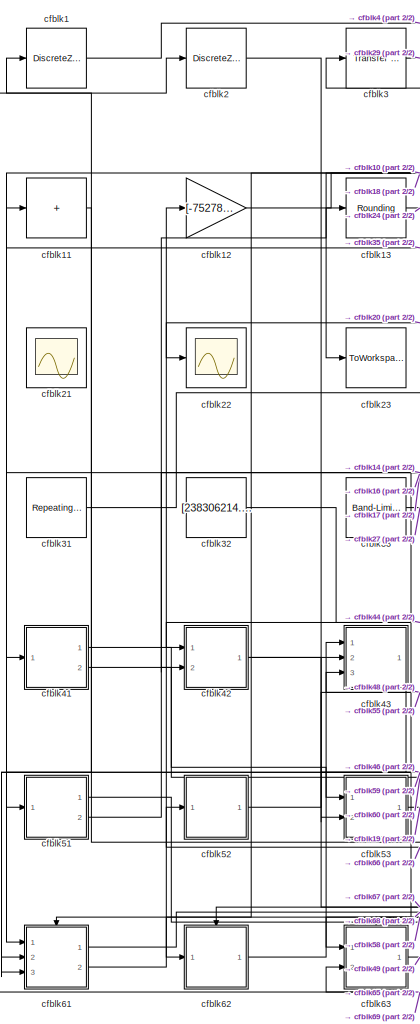
[diagram: root canvas - part 1/2, left side, full height]
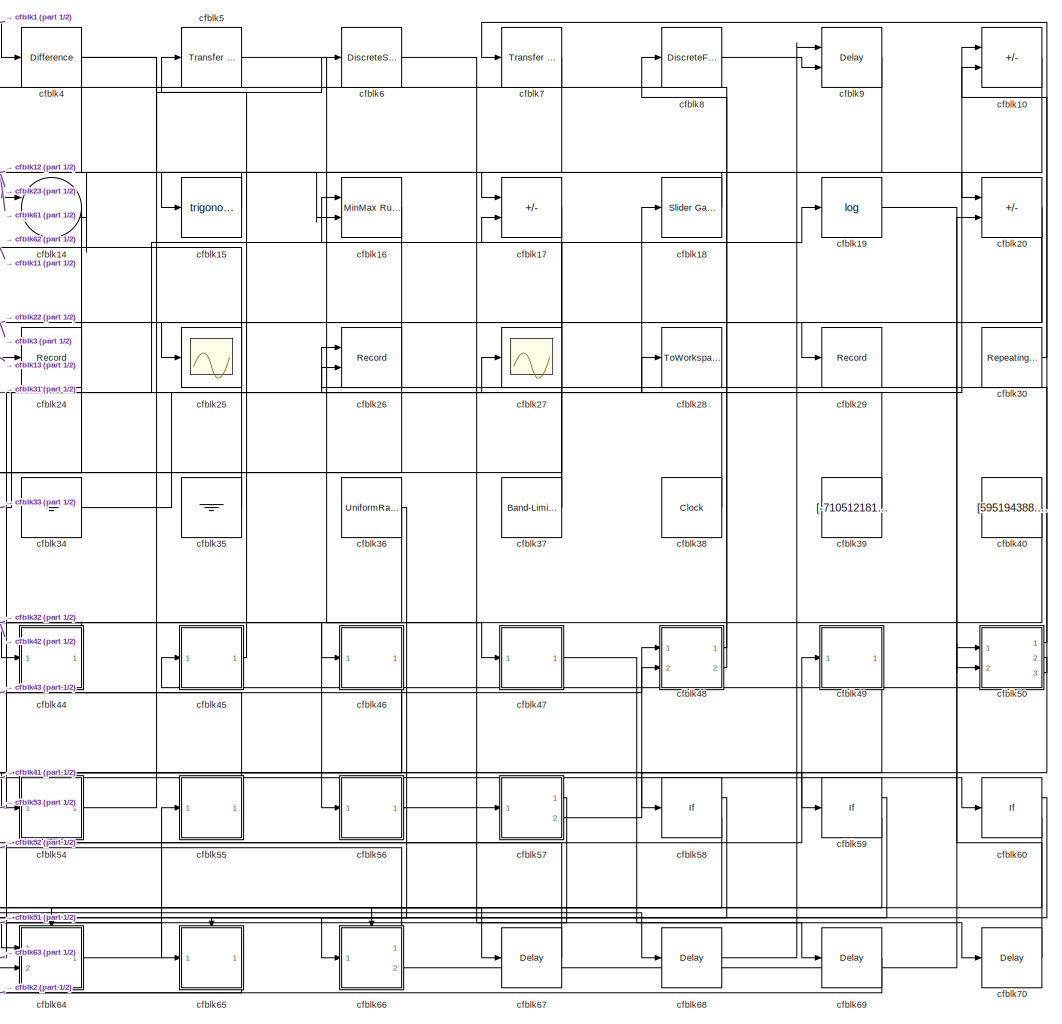
[diagram: root canvas - part 2/2, center side, full height]
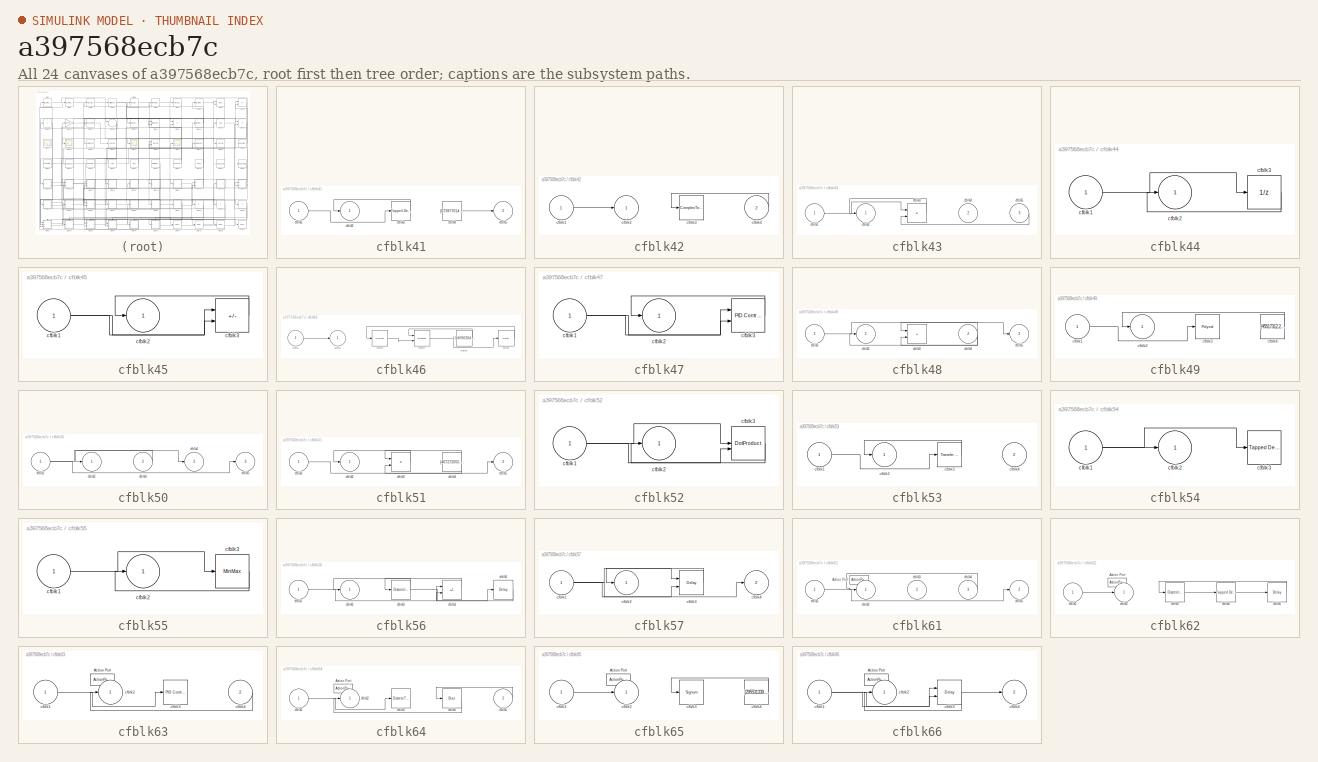
[diagram: thumbnail index - all 24 canvases of the model, root first then tree order]
MODEL slx_a397568ecb7c
KIND model
CONFIG AbsTol = auto
CONFIG EnableMultiTasking = off
CONFIG FixedStep = auto
CONFIG MaxStep = auto
CONFIG MinStep = auto
CONFIG RelTol = 1e-3
CONFIG SampleTimeConstraint = Unconstrained
CONFIG SolverName = VariableStepAuto
CONFIG StartTime = 0.0
CONFIG StopTime = 10.0
BLOCK [DiscreteZeroPole] cfblk1
  Gain = 1
  Poles = [0 0.5]
BLOCK [Sum] cfblk10
  IconShape = rectangular
  Inputs = +-
  Ports = [2, 1]
BLOCK [Sum] cfblk11
  IconShape = rectangular
  Inputs = +
  Ports = [1, 1]
BLOCK [Gain] cfblk12
  Gain = [-752784006.567977]
BLOCK [Rounding] cfblk13
BLOCK [Sum] cfblk14
  Inputs = |++
  Ports = [2, 1]
BLOCK [Trigonometry] cfblk15
  Ports = [1, 1]
BLOCK [Reference] cfblk16  REF=simulink/Math
Operations/MinMax
Running
Resettable
  Ports = [2, 1]
  SourceBlock = simulink/Math\nOperations/MinMax\nRunning\nResettable
  SourceProductBaseCode = SL
  SourceType = MinMax Running Resettable
BLOCK [Sum] cfblk17
  IconShape = rectangular
  Inputs = --
  Ports = [2, 1]
BLOCK [Reference] cfblk18  REF=simulink/Math
Operations/Slider
Gain
  Ports = [1, 1]
  SourceBlock = simulink/Math\nOperations/Slider\nGain
  SourceProductBaseCode = SL
  SourceType = Slider Gain
BLOCK [Math] cfblk19
  Operator = log
  Ports = [1, 1]
BLOCK [DiscreteZeroPole] cfblk2
  Gain = 1
  Poles = [0 0.5]
BLOCK [Sum] cfblk20
  IconShape = rectangular
  Inputs = --
  Ports = [2, 1]
BLOCK [Scope] cfblk21
  Floating = on
  NumInputPorts = 1
  Ports = []
BLOCK [Scope] cfblk22
  Floating = off
  NumInputPorts = 1
  Ports = [1]
BLOCK [ToWorkspace] cfblk23
  FixptAsFi = on
  MaxDataPoints = inf
  Ports = [1]
  SampleTime = -1
  SaveFormat = Timeseries
  VariableName = uregbij
BLOCK [Record] cfblk24
  FileSettingsInternal = {"entries":[{"content":{"excelSettings":{"content":{},"type":"Streamout.ExcelSettings"}},"type":"Streamout.FileSettingStorage","uuid":"02e6ebe4-4f75-4483-8c40-05cdad5e9980"}],"packageUris":["http://schema.mathworks.com/mf0/streamout_blocks/R2020a"],"version":"1.0"}
  Ports = [1]
  SignalsInternal = {"entries":[{"content":{"signals":[{"content":{"blockPath":["sampleModel290/cfblk24"],"channel":[],"dimensions":[1],"domain":"sampleModel290/cfblk24","lineColor":"#b746ff","plots":[1],"port":1,"sid":[""],"signalID":12410,"signalName":"cfblk13"},"type":"RecordBlkView.Signal","uuid":"8fecd66d-b984-43b4-8109-c7cccdd95abe"}]},"type":"RecordBlkView.InputSignals","uuid":"a5a1af20-5ce4-4407-aad3-677f96b5...<+98ch>
  VisualizationBindings = {"sparklinesplugin":{"info":[{"bindingParametersList":[],"subplotID":1}]}}
BLOCK [Scope] cfblk25
  Floating = off
  NumInputPorts = 1
  Ports = [1]
BLOCK [Record] cfblk26
  CompatibilityTag = XY
  FileSettingsInternal = {"entries":[{"content":{"excelSettings":{"content":{},"type":"Streamout.ExcelSettings"}},"type":"Streamout.FileSettingStorage","uuid":"e9eff6ce-7325-488c-8dda-929286e97066"}],"packageUris":["http://schema.mathworks.com/mf0/streamout_blocks/R2020a"],"version":"1.0"}
  Layout = [1 1]
  Ports = [2]
  SignalsInternal = {"entries":[{"content":{"signals":[{"content":{"blockPath":["sampleModel290/cfblk26"],"channel":[],"dimensions":[1],"domain":"sampleModel290/cfblk26","lineColor":"#a2142f","plots":[1],"port":1,"sid":[""],"signalID":12398,"signalName":"cfblk39"},"type":"RecordBlkView.Signal","uuid":"f127209e-a6a9-45f0-a171-9e263d700d63"},{"content":{"blockPath":["sampleModel290/cfblk26"],"channel":[],"dimensions":[...<+387ch>
  VisualizationBindings = {"xyplotplugin":{"info":[{"series":[{"bindingParametersList":[{"parameter":"X-Axis","signalID":12398,"signalName":"cfblk39"},{"parameter":"Y-Axis","signalID":12402,"signalName":"cfblk50:3"}],"seriesID":48777}],"subplotID":1}]}}
BLOCK [Scope] cfblk27
  Floating = off
  NumInputPorts = 1
  Ports = [1]
BLOCK [ToWorkspace] cfblk28
  FixptAsFi = on
  MaxDataPoints = inf
  Ports = [1]
  SampleTime = -1
  SaveFormat = Timeseries
  VariableName = mtbtcrv
BLOCK [Record] cfblk29
  FileSettingsInternal = {"entries":[{"content":{"excelSettings":{"content":{},"type":"Streamout.ExcelSettings"}},"type":"Streamout.FileSettingStorage","uuid":"29b8966b-b4bc-476a-ae5d-9c117f13036d"}],"packageUris":["http://schema.mathworks.com/mf0/streamout_blocks/R2020a"],"version":"1.0"}
  Ports = [1]
  SignalsInternal = {"entries":[{"content":{"signals":[{"content":{"blockPath":["sampleModel290/cfblk29"],"channel":[],"dimensions":[1],"domain":"sampleModel290/cfblk29","lineColor":"#ff6929","plots":[1],"port":1,"sid":[""],"signalID":12406,"signalName":"cfblk3"},"type":"RecordBlkView.Signal","uuid":"751a8cc0-37be-4623-afca-9451bd3e439f"}]},"type":"RecordBlkView.InputSignals","uuid":"efe1f030-47b9-4a82-add3-9ef924c5a...<+97ch>
  VisualizationBindings = {"sparklinesplugin":{"info":[{"bindingParametersList":[],"subplotID":1}]}}
BLOCK [Reference] cfblk3  REF=simulink/Discrete/Transfer Fcn
First Order
  Ports = [1, 1]
  SourceBlock = simulink/Discrete/Transfer Fcn\nFirst Order
  SourceProductBaseCode = SL
  SourceType = First Order Transfer Fcn
BLOCK [Reference] cfblk30  REF=simulink/Sources/Repeating
Sequence
  Ports = [0, 1]
  SourceBlock = simulink/Sources/Repeating\nSequence
  SourceProductBaseCode = SL
  SourceType = Repeating table
BLOCK [Reference] cfblk31  REF=simulink/Sources/Repeating
Sequence
Stair
  Ports = [0, 1]
  SourceBlock = simulink/Sources/Repeating\nSequence\nStair
  SourceProductBaseCode = SL
  SourceType = Repeating Sequence Stair
BLOCK [Constant] cfblk32
  SampleTime = 1
  Value = [238306214.110015]
BLOCK [Reference] cfblk33  REF=simulink/Sources/Band-Limited
White Noise
  Ports = [0, 1]
  SourceBlock = simulink/Sources/Band-Limited\nWhite Noise
  SourceProductBaseCode = SL
  SourceType = Band-Limited White Noise.
BLOCK [Ground] cfblk34
BLOCK [Ground] cfblk35
BLOCK [UniformRandomNumber] cfblk36
  Maximum = [646647958.564841]
  Minimum = [-8823997467.295820]
  SampleTime = 0.1
  Seed = [60070097.000000]
BLOCK [Reference] cfblk37  REF=simulink/Sources/Band-Limited
White Noise
  Ports = [0, 1]
  SourceBlock = simulink/Sources/Band-Limited\nWhite Noise
  SourceProductBaseCode = SL
  SourceType = Band-Limited White Noise.
BLOCK [Clock] cfblk38
BLOCK [Constant] cfblk39
  SampleTime = 1
  Value = [-710512181.392752]
BLOCK [Reference] cfblk4  REF=simulink/Discrete/Difference
  Ports = [1, 1]
  SourceBlock = simulink/Discrete/Difference
  SourceProductBaseCode = SL
  SourceType = Difference
BLOCK [Constant] cfblk40
  SampleTime = 1
  Value = [595194388.522796]
BLOCK [SubSystem] cfblk41
  Ports = [1, 2]
  RequestExecContextInheritance = off
BLOCK [Inport] cfblk41/cfblk1
BLOCK [Outport] cfblk41/cfblk2
BLOCK [Reference] cfblk41/cfblk3  REF=simulink/Discrete/Tapped Delay
  Ports = [1, 1]
  SourceBlock = simulink/Discrete/Tapped Delay
  SourceProductBaseCode = SL
  SourceType = Tapped Delay Line
BLOCK [Constant] cfblk41/cfblk4
  SampleTime = 1
  Value = [673977014.973697]
BLOCK [Outport] cfblk41/cfblk5
  Port = 2
BLOCK [SubSystem] cfblk42
  Ports = [2, 1]
  RequestExecContextInheritance = off
BLOCK [Inport] cfblk42/cfblk1
BLOCK [Outport] cfblk42/cfblk2
BLOCK [ComplexToMagnitudeAngle] cfblk42/cfblk3
  Ports = [1, 2]
BLOCK [Inport] cfblk42/cfblk4
  Port = 2
BLOCK [SubSystem] cfblk43
  Ports = [3, 1]
  RequestExecContextInheritance = off
BLOCK [Inport] cfblk43/cfblk1
BLOCK [Outport] cfblk43/cfblk2
BLOCK [Product] cfblk43/cfblk3
  Inputs = **
  Ports = [2, 1]
BLOCK [Inport] cfblk43/cfblk4
  Port = 2
BLOCK [Inport] cfblk43/cfblk5
  Port = 3
BLOCK [SubSystem] cfblk44
  Ports = [1, 1]
  RequestExecContextInheritance = off
BLOCK [Inport] cfblk44/cfblk1
BLOCK [Outport] cfblk44/cfblk2
BLOCK [UnitDelay] cfblk44/cfblk3
  HasFrameUpgradeWarning = on
BLOCK [SubSystem] cfblk45
  Ports = [1, 1]
  RequestExecContextInheritance = off
BLOCK [Inport] cfblk45/cfblk1
BLOCK [Outport] cfblk45/cfblk2
BLOCK [Sum] cfblk45/cfblk3
  IconShape = rectangular
  Inputs = +-
  Ports = [2, 1]
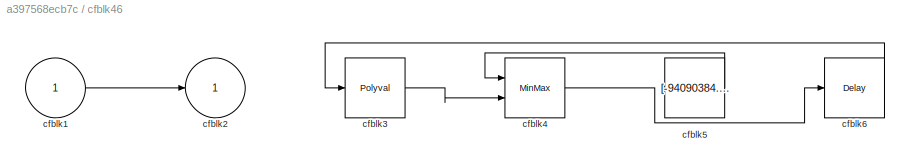
BLOCK [SubSystem] cfblk46
  Ports = [1, 1]
  RequestExecContextInheritance = off
BLOCK [Inport] cfblk46/cfblk1
BLOCK [Outport] cfblk46/cfblk2
BLOCK [Polyval] cfblk46/cfblk3
  Coefs = [ +2.081618890e-019, -1.441693666e-014, +4.719686976e-010, -8.536869453e-006, +1.621573104e-001, -8.087801117e+001 ]
BLOCK [MinMax] cfblk46/cfblk4
  Inputs = 2
  Ports = [2, 1]
BLOCK [Constant] cfblk46/cfblk5
  SampleTime = 1
  Value = [-94090384.664938]
BLOCK [Delay] cfblk46/cfblk6
  InputPortMap = u0
  Ports = [1, 1]
  SampleTime = 1
BLOCK [SubSystem] cfblk47
  Ports = [1, 1]
  RequestExecContextInheritance = off
BLOCK [Inport] cfblk47/cfblk1
BLOCK [Outport] cfblk47/cfblk2
BLOCK [Reference] cfblk47/cfblk3  REF=slpidlib/PID Controller (2DOF)
  Ports = [2, 1]
  SourceBlock = slpidlib/PID Controller (2DOF)
  SourceProductBaseCode = SL
  SourceType = PID 2dof
BLOCK [SubSystem] cfblk48
  Ports = [2, 2]
  RequestExecContextInheritance = off
BLOCK [Inport] cfblk48/cfblk1
BLOCK [Outport] cfblk48/cfblk2
BLOCK [Sum] cfblk48/cfblk3
  IconShape = rectangular
  Ports = [2, 1]
BLOCK [Inport] cfblk48/cfblk4
  Port = 2
BLOCK [Outport] cfblk48/cfblk5
  Port = 2
BLOCK [SubSystem] cfblk49
  Ports = [1, 1]
  RequestExecContextInheritance = off
BLOCK [Inport] cfblk49/cfblk1
BLOCK [Outport] cfblk49/cfblk2
BLOCK [Polyval] cfblk49/cfblk3
  Coefs = [ +2.081618890e-019, -1.441693666e-014, +4.719686976e-010, -8.536869453e-006, +1.621573104e-001, -8.087801117e+001 ]
BLOCK [Constant] cfblk49/cfblk4
  SampleTime = 1
  Value = [45517312.286219]
BLOCK [Reference] cfblk5  REF=simulink/Discrete/Transfer Fcn
First Order
  Ports = [1, 1]
  SourceBlock = simulink/Discrete/Transfer Fcn\nFirst Order
  SourceProductBaseCode = SL
  SourceType = First Order Transfer Fcn
BLOCK [SubSystem] cfblk50
  Ports = [2, 3]
  RequestExecContextInheritance = off
BLOCK [Inport] cfblk50/cfblk1
BLOCK [Outport] cfblk50/cfblk2
BLOCK [Inport] cfblk50/cfblk3
  Port = 2
BLOCK [Outport] cfblk50/cfblk4
  Port = 2
BLOCK [Outport] cfblk50/cfblk5
  Port = 3
BLOCK [SubSystem] cfblk51
  Ports = [1, 2]
  RequestExecContextInheritance = off
BLOCK [Inport] cfblk51/cfblk1
BLOCK [Outport] cfblk51/cfblk2
BLOCK [Product] cfblk51/cfblk3
  Ports = [2, 1]
BLOCK [Constant] cfblk51/cfblk4
  SampleTime = 1
  Value = [467272055.001370]
BLOCK [Outport] cfblk51/cfblk5
  Port = 2
BLOCK [SubSystem] cfblk52
  Ports = [1, 1]
  RequestExecContextInheritance = off
BLOCK [Inport] cfblk52/cfblk1
BLOCK [Outport] cfblk52/cfblk2
BLOCK [DotProduct] cfblk52/cfblk3
  OutDataTypeStr = Inherit: Inherit via internal rule
BLOCK [SubSystem] cfblk53
  Ports = [2, 1]
  RequestExecContextInheritance = off
BLOCK [Inport] cfblk53/cfblk1
BLOCK [Outport] cfblk53/cfblk2
BLOCK [Reference] cfblk53/cfblk3  REF=simulink/Discrete/Transfer Fcn
Real Zero
  Ports = [1, 1]
  SourceBlock = simulink/Discrete/Transfer Fcn\nReal Zero
  SourceProductBaseCode = SL
  SourceType = Transfer Fcn Real Zero
BLOCK [Inport] cfblk53/cfblk4
  Port = 2
BLOCK [SubSystem] cfblk54
  Ports = [1, 1]
  RequestExecContextInheritance = off
BLOCK [Inport] cfblk54/cfblk1
BLOCK [Outport] cfblk54/cfblk2
BLOCK [Reference] cfblk54/cfblk3  REF=simulink/Discrete/Tapped Delay
  Ports = [1, 1]
  SourceBlock = simulink/Discrete/Tapped Delay
  SourceProductBaseCode = SL
  SourceType = Tapped Delay Line
BLOCK [SubSystem] cfblk55
  Ports = [1, 1]
  RequestExecContextInheritance = off
BLOCK [Inport] cfblk55/cfblk1
BLOCK [Outport] cfblk55/cfblk2
BLOCK [MinMax] cfblk55/cfblk3
  Ports = [1, 1]
BLOCK [SubSystem] cfblk56
  Ports = [1, 1]
  RequestExecContextInheritance = off
BLOCK [Inport] cfblk56/cfblk1
BLOCK [Outport] cfblk56/cfblk2
BLOCK [DiscreteIntegrator] cfblk56/cfblk3
  ICPrevOutput = DiscIntNeverNeededParam
  ICPrevScaledInput = DiscIntNeverNeededParam
  InitialConditionSetting = Auto
  Ports = [1, 1]
BLOCK [Sum] cfblk56/cfblk4
  IconShape = rectangular
  Inputs = +-
  Ports = [2, 1]
BLOCK [Delay] cfblk56/cfblk5
  InputPortMap = u0
  Ports = [1, 1]
  SampleTime = 1
BLOCK [SubSystem] cfblk57
  Ports = [1, 2]
  RequestExecContextInheritance = off
BLOCK [Inport] cfblk57/cfblk1
BLOCK [Outport] cfblk57/cfblk2
BLOCK [Delay] cfblk57/cfblk3
  InputPortMap = u0,e6
  Ports = [2, 1]
  SampleTime = 1
  ShowEnablePort = on
BLOCK [Outport] cfblk57/cfblk4
  Port = 2
BLOCK [If] cfblk58
  IfExpression = u1 >= 0
  Ports = [1, 2]
  SampleTime = 1
BLOCK [If] cfblk59
  IfExpression = u1 >= 0
  Ports = [1, 2]
  SampleTime = 1
BLOCK [DiscreteStateSpace] cfblk6
BLOCK [If] cfblk60
  IfExpression = u1 >= 0
  Ports = [1, 2]
  SampleTime = 1
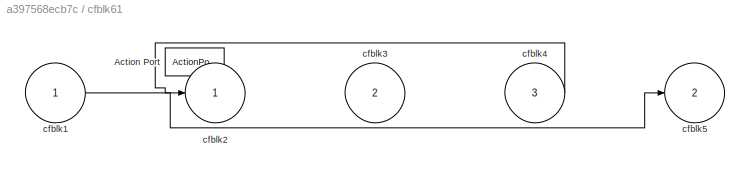
BLOCK [SubSystem] cfblk61
  Ports = [3, 2, 0, 0, 0, 0, 0, 1]
  RequestExecContextInheritance = off
  TreatAsAtomicUnit = on
BLOCK [ActionPort] cfblk61/Action Port
  ActionPortLabel = if(u1 >= 0)
BLOCK [Inport] cfblk61/cfblk1
BLOCK [Outport] cfblk61/cfblk2
BLOCK [Inport] cfblk61/cfblk3
  Port = 2
BLOCK [Inport] cfblk61/cfblk4
  Port = 3
BLOCK [Outport] cfblk61/cfblk5
  Port = 2
BLOCK [SubSystem] cfblk62
  Ports = [1, 1, 0, 0, 0, 0, 0, 1]
  RequestExecContextInheritance = off
  TreatAsAtomicUnit = on
BLOCK [ActionPort] cfblk62/Action Port
  ActionPortLabel = else
BLOCK [Inport] cfblk62/cfblk1
BLOCK [Outport] cfblk62/cfblk2
BLOCK [DiscreteIntegrator] cfblk62/cfblk3
  ICPrevOutput = DiscIntNeverNeededParam
  ICPrevScaledInput = DiscIntNeverNeededParam
  InitialConditionSetting = Auto
  Ports = [1, 1]
  SampleTime = -1
BLOCK [Reference] cfblk62/cfblk4  REF=simulink/Discrete/Tapped Delay
  Ports = [1, 1]
  SourceBlock = simulink/Discrete/Tapped Delay
  SourceProductBaseCode = SL
  SourceType = Tapped Delay Line
BLOCK [Delay] cfblk62/cfblk5
  InputPortMap = u0
  Ports = [1, 1]
BLOCK [SubSystem] cfblk63
  Ports = [2, 1, 0, 0, 0, 0, 0, 1]
  RequestExecContextInheritance = off
  TreatAsAtomicUnit = on
BLOCK [ActionPort] cfblk63/Action Port
  ActionPortLabel = if(u1 >= 0)
BLOCK [Inport] cfblk63/cfblk1
BLOCK [Outport] cfblk63/cfblk2
BLOCK [Reference] cfblk63/cfblk3  REF=slpidlib/PID Controller
  Ports = [1, 1]
  SourceBlock = slpidlib/PID Controller
  SourceProductBaseCode = SL
  SourceType = PID 1dof
BLOCK [Inport] cfblk63/cfblk4
  Port = 2
BLOCK [SubSystem] cfblk64
  Ports = [2, 1, 0, 0, 0, 0, 0, 1]
  RequestExecContextInheritance = off
  TreatAsAtomicUnit = on
BLOCK [ActionPort] cfblk64/Action Port
  ActionPortLabel = else
BLOCK [Inport] cfblk64/cfblk1
BLOCK [Outport] cfblk64/cfblk2
BLOCK [DiscreteTransferFcn] cfblk64/cfblk3
  InputPortMap = u0
  Ports = [1, 1]
BLOCK [Bias] cfblk64/cfblk4
  Bias = [-11630056.141184]
  SaturateOnIntegerOverflow = off
BLOCK [Inport] cfblk64/cfblk5
  Port = 2
BLOCK [SubSystem] cfblk65
  Ports = [1, 1, 0, 0, 0, 0, 0, 1]
  RequestExecContextInheritance = off
  TreatAsAtomicUnit = on
BLOCK [ActionPort] cfblk65/Action Port
  ActionPortLabel = if(u1 >= 0)
BLOCK [Inport] cfblk65/cfblk1
BLOCK [Outport] cfblk65/cfblk2
BLOCK [Signum] cfblk65/cfblk3
BLOCK [Constant] cfblk65/cfblk4
  SampleTime = 1
  Value = [295531339.054858]
BLOCK [SubSystem] cfblk66
  Ports = [1, 2, 0, 0, 0, 0, 0, 1]
  RequestExecContextInheritance = off
  TreatAsAtomicUnit = on
BLOCK [ActionPort] cfblk66/Action Port
  ActionPortLabel = else
BLOCK [Inport] cfblk66/cfblk1
BLOCK [Outport] cfblk66/cfblk2
BLOCK [Delay] cfblk66/cfblk3
  DelayLengthSource = Input port
  InputPortMap = u0,p1
  Ports = [2, 1]
BLOCK [Outport] cfblk66/cfblk4
  Port = 2
BLOCK [Delay] cfblk67
  InputPortMap = u0
  Ports = [1, 1]
  SampleTime = 1
BLOCK [Delay] cfblk68
  InputPortMap = u0
  Ports = [1, 1]
  SampleTime = 1
BLOCK [Delay] cfblk69
  InputPortMap = u0
  Ports = [1, 1]
  SampleTime = 1
BLOCK [Reference] cfblk7  REF=simulink/Discrete/Transfer Fcn
Lead or Lag
  Ports = [1, 1]
  SourceBlock = simulink/Discrete/Transfer Fcn\nLead or Lag
  SourceProductBaseCode = SL
  SourceType = Lead or Lag Compensator
BLOCK [Delay] cfblk70
  InputPortMap = u0
  Ports = [1, 1]
  SampleTime = 1
BLOCK [DiscreteFir] cfblk8
  InputPortMap = u0
  OutputPortMap = o0
  Ports = [1, 1]
  SampleTime = 1
BLOCK [Delay] cfblk9
  InputPortMap = u0,e6
  Ports = [2, 1]
  SampleTime = 1
  ShowEnablePort = on
LINE cfblk10:1 -> cfblk62:1
LINE cfblk11:1 -> cfblk51:1
LINE cfblk12:1 -> cfblk20:1
LINE cfblk13:1 -> cfblk24:1
NET cfblk14:1 -> cfblk42:2, cfblk64:2
LINE cfblk15:1 -> cfblk14:1
LINE cfblk16:1 -> cfblk63:1
LINE cfblk17:1 -> cfblk41:1
LINE cfblk18:1 -> cfblk61:1
LINE cfblk19:1 -> cfblk50:2
LINE cfblk1:1 -> cfblk4:1
NET cfblk20:1 -> cfblk22:1, cfblk25:1
LINE cfblk2:1 -> cfblk67:1
LINE cfblk30:1 -> cfblk7:1
LINE cfblk31:1 -> cfblk18:1
LINE cfblk32:1 -> cfblk46:1
LINE cfblk33:1 -> cfblk27:1
LINE cfblk34:1 -> cfblk10:1
LINE cfblk35:1 -> cfblk11:1
NET cfblk36:1 -> cfblk56:1, cfblk66:1
NET cfblk37:1 -> cfblk16:1, cfblk17:2
LINE cfblk38:1 -> cfblk28:1
LINE cfblk39:1 -> cfblk26:1
LINE cfblk3:1 -> cfblk29:1
LINE cfblk40:1 -> cfblk44:1
LINE cfblk41/cfblk1:1 -> cfblk41/cfblk3:1
LINE cfblk41/cfblk3:1 -> cfblk41/cfblk2:1
LINE cfblk41/cfblk4:1 -> cfblk41/cfblk5:1
LINE cfblk41:1 -> cfblk60:1
LINE cfblk41:2 -> cfblk53:1
LINE cfblk42/cfblk1:1 -> cfblk42/cfblk2:1
LINE cfblk42/cfblk4:1 -> cfblk42/cfblk3:1
NET cfblk42:1 -> cfblk43:2, cfblk59:1
LINE cfblk43/cfblk1:1 -> cfblk43/cfblk3:1
LINE cfblk43/cfblk3:1 -> cfblk43/cfblk2:1
LINE cfblk43/cfblk5:1 -> cfblk43/cfblk3:2
LINE cfblk43:1 -> cfblk61:2
LINE cfblk44/cfblk1:1 -> cfblk44/cfblk3:1
LINE cfblk44/cfblk3:1 -> cfblk44/cfblk2:1
LINE cfblk44:1 -> cfblk42:1
NET cfblk45/cfblk1:1 -> cfblk45/cfblk3:1, cfblk45/cfblk3:2
LINE cfblk45/cfblk3:1 -> cfblk45/cfblk2:1
LINE cfblk45:1 -> cfblk5:1
LINE cfblk46/cfblk1:1 -> cfblk46/cfblk2:1
LINE cfblk46/cfblk3:1 -> cfblk46/cfblk4:2
LINE cfblk46/cfblk4:1 -> cfblk46/cfblk6:1
LINE cfblk46/cfblk5:1 -> cfblk46/cfblk4:1
LINE cfblk46/cfblk6:1 -> cfblk46/cfblk3:1
NET cfblk46:1 -> cfblk53:2, cfblk61:3
NET cfblk47/cfblk1:1 -> cfblk47/cfblk3:1, cfblk47/cfblk3:2
LINE cfblk47/cfblk3:1 -> cfblk47/cfblk2:1
LINE cfblk47:1 -> cfblk70:1
LINE cfblk48/cfblk1:1 -> cfblk48/cfblk5:1
NET cfblk48/cfblk4:1 -> cfblk48/cfblk2:1, cfblk48/cfblk3:1, cfblk48/cfblk3:2
LINE cfblk48:1 -> cfblk8:1
LINE cfblk48:2 -> cfblk3:1
LINE cfblk49/cfblk1:1 -> cfblk49/cfblk3:1
LINE cfblk49/cfblk4:1 -> cfblk49/cfblk2:1
LINE cfblk49:1 -> cfblk54:1
NET cfblk4:1 -> cfblk16:2, cfblk17:1, cfblk23:1
NET cfblk50/cfblk1:1 -> cfblk50/cfblk4:1, cfblk50/cfblk5:1
LINE cfblk50/cfblk3:1 -> cfblk50/cfblk2:1
LINE cfblk50:1 -> cfblk10:2
LINE cfblk50:2 -> cfblk58:1
NET cfblk50:3 -> cfblk26:2, cfblk45:1
LINE cfblk51/cfblk1:1 -> cfblk51/cfblk5:1
LINE cfblk51/cfblk3:1 -> cfblk51/cfblk2:1
NET cfblk51/cfblk4:1 -> cfblk51/cfblk3:1, cfblk51/cfblk3:2
LINE cfblk51:1 -> cfblk65:1
LINE cfblk51:2 -> cfblk13:1
NET cfblk52/cfblk1:1 -> cfblk52/cfblk3:1, cfblk52/cfblk3:2
LINE cfblk52/cfblk3:1 -> cfblk52/cfblk2:1
LINE cfblk52:1 -> cfblk48:2
LINE cfblk53/cfblk1:1 -> cfblk53/cfblk3:1
LINE cfblk53/cfblk3:1 -> cfblk53/cfblk2:1
LINE cfblk53:1 -> cfblk19:1
NET cfblk54/cfblk1:1 -> cfblk54/cfblk2:1, cfblk54/cfblk3:1
LINE cfblk54:1 -> cfblk6:1
LINE cfblk55/cfblk1:1 -> cfblk55/cfblk3:1
LINE cfblk55/cfblk3:1 -> cfblk55/cfblk2:1
LINE cfblk55:1 -> cfblk43:3
LINE cfblk56/cfblk1:1 -> cfblk56/cfblk4:1
NET cfblk56/cfblk3:1 -> cfblk56/cfblk2:1, cfblk56/cfblk5:1
LINE cfblk56/cfblk4:1 -> cfblk56/cfblk3:1
LINE cfblk56/cfblk5:1 -> cfblk56/cfblk4:2
LINE cfblk56:1 -> cfblk57:1
NET cfblk57/cfblk1:1 -> cfblk57/cfblk3:1, cfblk57/cfblk3:2, cfblk57/cfblk4:1
LINE cfblk57/cfblk3:1 -> cfblk57/cfblk2:1
LINE cfblk57:1 -> cfblk64:1
LINE cfblk57:2 -> cfblk48:1
LINE cfblk58:1 -> cfblk61:ifaction
LINE cfblk58:2 -> cfblk62:ifaction
LINE cfblk59:1 -> cfblk63:ifaction
LINE cfblk59:2 -> cfblk64:ifaction
LINE cfblk5:1 -> cfblk47:1
LINE cfblk60:1 -> cfblk65:ifaction
LINE cfblk60:2 -> cfblk66:ifaction
LINE cfblk61/cfblk1:1 -> cfblk61/cfblk5:1
LINE cfblk61/cfblk4:1 -> cfblk61/cfblk2:1
LINE cfblk61:1 -> cfblk68:1
LINE cfblk61:2 -> cfblk12:1
LINE cfblk62/cfblk1:1 -> cfblk62/cfblk2:1
LINE cfblk62/cfblk3:1 -> cfblk62/cfblk4:1
LINE cfblk62/cfblk4:1 -> cfblk62/cfblk5:1
LINE cfblk62/cfblk5:1 -> cfblk62/cfblk3:1
LINE cfblk62:1 -> cfblk43:1
LINE cfblk63/cfblk1:1 -> cfblk63/cfblk3:1
LINE cfblk63/cfblk4:1 -> cfblk63/cfblk2:1
LINE cfblk63:1 -> cfblk49:1
LINE cfblk64/cfblk1:1 -> cfblk64/cfblk3:1
LINE cfblk64/cfblk4:1 -> cfblk64/cfblk2:1
LINE cfblk64/cfblk5:1 -> cfblk64/cfblk4:1
LINE cfblk64:1 -> cfblk55:1
LINE cfblk65/cfblk1:1 -> cfblk65/cfblk2:1
LINE cfblk65/cfblk4:1 -> cfblk65/cfblk3:1
LINE cfblk65:1 -> cfblk2:1
NET cfblk66/cfblk1:1 -> cfblk66/cfblk3:1, cfblk66/cfblk3:2
NET cfblk66/cfblk3:1 -> cfblk66/cfblk2:1, cfblk66/cfblk4:1
LINE cfblk66:1 -> cfblk52:1
LINE cfblk66:2 -> cfblk20:2
LINE cfblk67:1 -> cfblk1:1
LINE cfblk68:1 -> cfblk9:1
LINE cfblk69:1 -> cfblk63:2
LINE cfblk6:1 -> cfblk69:1
LINE cfblk70:1 -> cfblk50:1
LINE cfblk7:1 -> cfblk14:2
LINE cfblk8:1 -> cfblk9:2
LINE cfblk9:1 -> cfblk15:1
note: NET lines group one-source signal fan-out (src -> all destinations, sorted); 1:1 wires keep LINE
